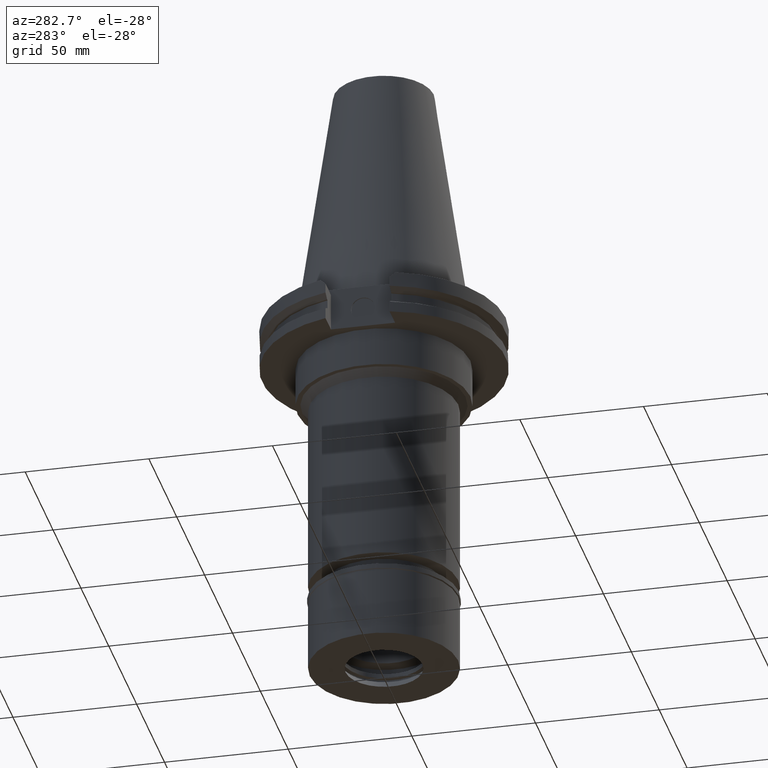
[diagram: clean part render]
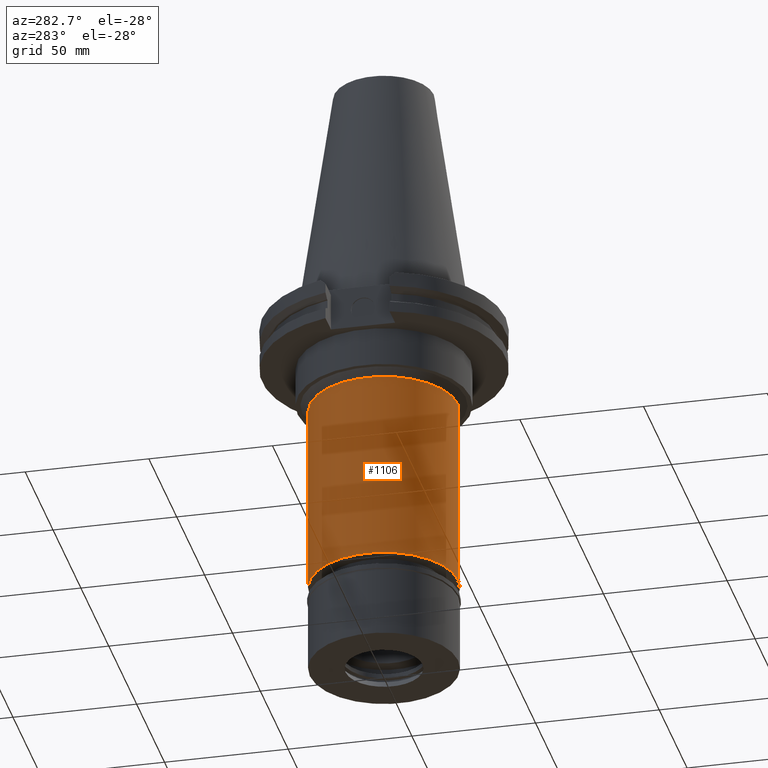
[diagram: same view with one face highlighted and labeled with its STEP entity id]
A machine part, auxiliary view. The second image highlights one B-rep face of the part: STEP entity #1106.
In plain terms, the highlighted cylindrical surface (partial cylindrical patch) has radius 30 mm, axis along (0, 0, -1).
Its self-contained STEP definition (entity closure, byte-faithful):
#23 = DIRECTION ( 'NONE',  ( 0.0000000000000000000, 0.0000000000000000000, 1.000000000000000000 ) ) ;
#26 = DIRECTION ( 'NONE',  ( 0.0000000000000000000, 0.0000000000000000000, -1.000000000000000000 ) ) ;
#79 = EDGE_CURVE ( 'NONE', #2556, #746, #370, .T. ) ;
#370 = LINE ( 'NONE', #2302, #2106 ) ;
#483 = CARTESIAN_POINT ( 'NONE',  ( 0.0000000000000000000, -30.00000000000000000, -38.00000000000000000 ) ) ;
#503 = ORIENTED_EDGE ( 'NONE', *, *, #2737, .T. ) ;
#585 = DIRECTION ( 'NONE',  ( 0.0000000000000000000, 0.0000000000000000000, -1.000000000000000000 ) ) ;
#606 = CARTESIAN_POINT ( 'NONE',  ( 0.0000000000000000000, 30.00000000000000000, -116.5000000000000000 ) ) ;
#665 = AXIS2_PLACEMENT_3D ( 'NONE', #2558, #585, #2326 ) ;
#746 = VERTEX_POINT ( 'NONE', #606 ) ;
#773 = EDGE_LOOP ( 'NONE', ( #503, #2888, #1419, #1286 ) ) ;
#799 = CIRCLE ( 'NONE', #1789, 30.00000000000000000 ) ;
#842 = DIRECTION ( 'NONE',  ( 0.0000000000000000000, 0.0000000000000000000, -1.000000000000000000 ) ) ;
#910 = AXIS2_PLACEMENT_3D ( 'NONE', #2433, #23, #1705 ) ;
#1106 = ADVANCED_FACE ( 'NONE', ( #2091 ), #3059, .T. ) ;
#1271 = CARTESIAN_POINT ( 'NONE',  ( 0.0000000000000000000, -30.00000000000000000, -116.5000000000000000 ) ) ;
#1286 = ORIENTED_EDGE ( 'NONE', *, *, #79, .T. ) ;
#1419 = ORIENTED_EDGE ( 'NONE', *, *, #2253, .T. ) ;
#1531 = DIRECTION ( 'NONE',  ( 0.0000000000000000000, -1.000000000000000000, 0.0000000000000000000 ) ) ;
#1705 = DIRECTION ( 'NONE',  ( 0.0000000000000000000, 1.000000000000000000, 0.0000000000000000000 ) ) ;
#1754 = CARTESIAN_POINT ( 'NONE',  ( 0.0000000000000000000, 0.0000000000000000000, -38.00000000000000000 ) ) ;
#1789 = AXIS2_PLACEMENT_3D ( 'NONE', #1754, #26, #1531 ) ;
#1982 = DIRECTION ( 'NONE',  ( 0.0000000000000000000, 0.0000000000000000000, -1.000000000000000000 ) ) ;
#1995 = LINE ( 'NONE', #483, #2799 ) ;
#2091 = FACE_OUTER_BOUND ( 'NONE', #773, .T. ) ;
#2106 = VECTOR ( 'NONE', #842, 1000.000000000000000 ) ;
#2111 = CARTESIAN_POINT ( 'NONE',  ( 0.0000000000000000000, 30.00000000000000000, -38.00000000000000000 ) ) ;
#2235 = CARTESIAN_POINT ( 'NONE',  ( 0.0000000000000000000, -30.00000000000000000, -38.00000000000000000 ) ) ;
#2247 = VERTEX_POINT ( 'NONE', #2235 ) ;
#2253 = EDGE_CURVE ( 'NONE', #2247, #2556, #799, .T. ) ;
#2302 = CARTESIAN_POINT ( 'NONE',  ( 0.0000000000000000000, 30.00000000000000000, -38.00000000000000000 ) ) ;
#2326 = DIRECTION ( 'NONE',  ( 0.0000000000000000000, -1.000000000000000000, 0.0000000000000000000 ) ) ;
#2433 = CARTESIAN_POINT ( 'NONE',  ( 0.0000000000000000000, 1.392729572329999894E-14, -116.5000000000000000 ) ) ;
#2556 = VERTEX_POINT ( 'NONE', #2111 ) ;
#2558 = CARTESIAN_POINT ( 'NONE',  ( 0.0000000000000000000, 1.392729572329999894E-14, 113.7250000000000085 ) ) ;
#2652 = CIRCLE ( 'NONE', #910, 30.00000000000000000 ) ;
#2737 = EDGE_CURVE ( 'NONE', #746, #2903, #2652, .T. ) ;
#2799 = VECTOR ( 'NONE', #1982, 1000.000000000000000 ) ;
#2831 = EDGE_CURVE ( 'NONE', #2247, #2903, #1995, .T. ) ;
#2888 = ORIENTED_EDGE ( 'NONE', *, *, #2831, .F. ) ;
#2903 = VERTEX_POINT ( 'NONE', #1271 ) ;
#3059 = CYLINDRICAL_SURFACE ( 'NONE', #665, 30.00000000000000000 ) ;